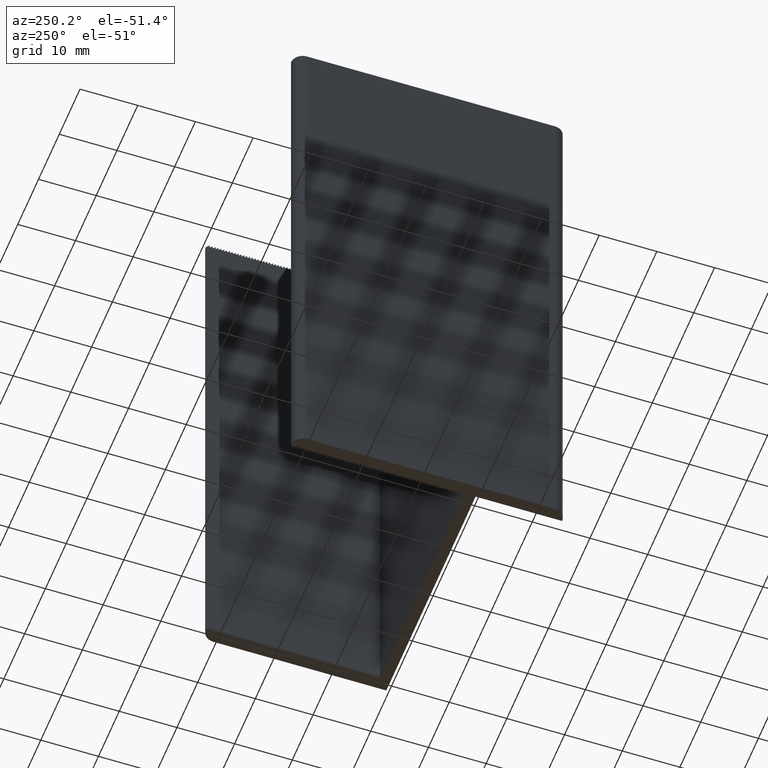
[diagram: clean part render]
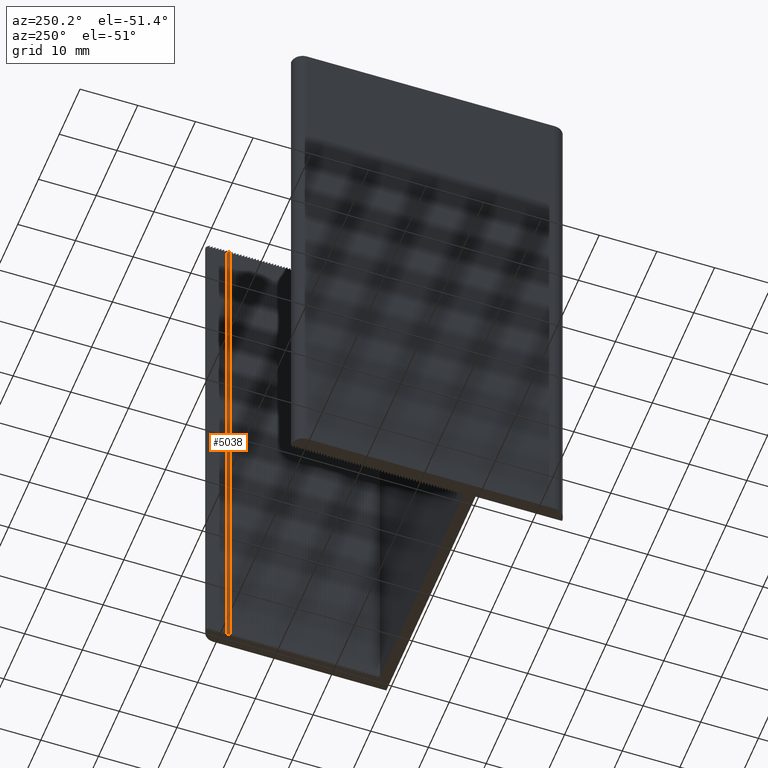
[diagram: same view with one face highlighted and labeled with its STEP entity id]
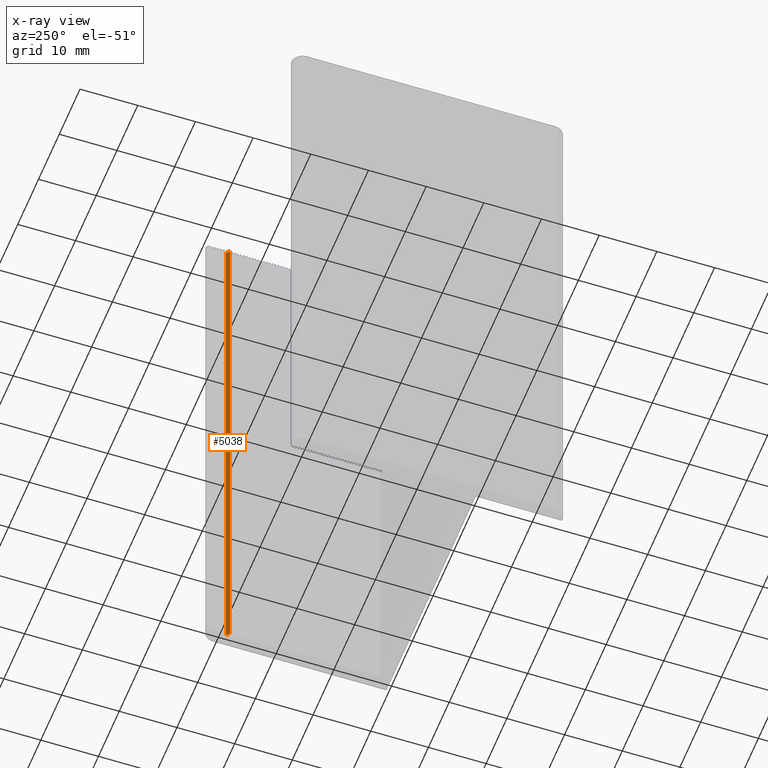
[diagram: x-ray of the same camera — body ghosted, the highlighted face saturated]
A machine part, auxiliary view. The second image highlights one B-rep face of the part: STEP entity #5038.
The next image is the same camera in x-ray: the body ghosted, the highlighted face saturated — about 0% of this face is hidden behind the body in this view.
In plain terms, the highlighted planar face has unit normal (-0.7071, 0.7071, 0).
Its self-contained STEP definition (entity closure, byte-faithful):
#127=FACE_OUTER_BOUND('',#375,.T.);
#375=EDGE_LOOP('',(#3626,#3627,#3628,#3629));
#829=LINE('',#7302,#1561);
#830=LINE('',#7305,#1562);
#831=LINE('',#7307,#1563);
#832=LINE('',#7308,#1564);
#1561=VECTOR('',#5956,100.);
#1562=VECTOR('',#5959,0.707106781186545);
#1563=VECTOR('',#5960,0.707106781186545);
#1564=VECTOR('',#5961,100.);
#2190=VERTEX_POINT('',#7298);
#2191=VERTEX_POINT('',#7300);
#2192=VERTEX_POINT('',#7304);
#2193=VERTEX_POINT('',#7306);
#2785=EDGE_CURVE('',#2190,#2191,#829,.T.);
#2786=EDGE_CURVE('',#2190,#2192,#830,.T.);
#2787=EDGE_CURVE('',#2193,#2191,#831,.T.);
#2788=EDGE_CURVE('',#2192,#2193,#832,.T.);
#3626=ORIENTED_EDGE('',*,*,#2786,.F.);
#3627=ORIENTED_EDGE('',*,*,#2785,.T.);
#3628=ORIENTED_EDGE('',*,*,#2787,.F.);
#3629=ORIENTED_EDGE('',*,*,#2788,.F.);
#4793=PLANE('',#5288);
#5038=ADVANCED_FACE('',(#127),#4793,.T.);
#5288=AXIS2_PLACEMENT_3D('',#7303,#5957,#5958);
#5956=DIRECTION('',(0.,0.,1.));
#5957=DIRECTION('center_axis',(-0.707106781186548,0.707106781186548,0.));
#5958=DIRECTION('ref_axis',(-0.707106781186548,-0.707106781186548,0.));
#5959=DIRECTION('',(0.707106781186547,0.707106781186547,0.));
#5960=DIRECTION('',(-0.707106781186547,-0.707106781186547,0.));
#5961=DIRECTION('',(0.,0.,1.));
#7298=CARTESIAN_POINT('',(20.,28.,0.));
#7300=CARTESIAN_POINT('',(20.,28.,100.));
#7302=CARTESIAN_POINT('',(20.,28.,0.));
#7303=CARTESIAN_POINT('Origin',(20.5,28.5,0.));
#7304=CARTESIAN_POINT('',(20.5,28.5,0.));
#7305=CARTESIAN_POINT('',(20.,28.,0.));
#7306=CARTESIAN_POINT('',(20.5,28.5,100.));
#7307=CARTESIAN_POINT('',(20.,28.,100.));
#7308=CARTESIAN_POINT('',(20.5,28.5,0.));